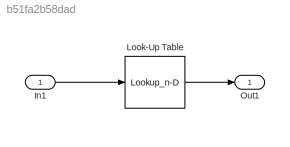
MODEL slx_b51fa2b58dad
KIND model
CONFIG AbsTol = auto
CONFIG EnableMultiTasking = off
CONFIG FixedStep = 0.1
CONFIG MaxStep = auto
CONFIG MinStep = auto
CONFIG RelTol = 1e-3
CONFIG SampleTimeConstraint = Unconstrained
CONFIG Solver = FixedStepAuto
CONFIG SolverName = FixedStepAuto
CONFIG StartTime = 0.0
CONFIG StopTime = 10.0
WORKSPACE source: MAT-file member
WORKSPACE XData = [0 0.0078125 0.015625 0.0234375 0.03125 0.0390625 0.046875 0.0546875 0.0625 0.0703125 0.078125 0.0859375 ... (33 elements, 1x33)]
BLOCK [Inport] In1
  IconDisplay = Port number
  OutMax = 1
  OutMin = 0
BLOCK [Lookup_n-D] Look-Up Table
  BreakpointsForDimension1 = XData
  ExtrapMethod = Clip
  IndexSearchMethod = Evenly spaced points
  InputSameDT = off
  InternalRulePriority = Speed
  LockScale = on
  NumberOfTableDimensions = 1
  OutDataTypeStr = fixdt(1, 16, 14)
  Ports = [1, 1]
  Table = YData
BLOCK [Outport] Out1
  IconDisplay = Port number
LINE In1:1 -> Look-Up Table:1
LINE Look-Up Table:1 -> Out1:1
